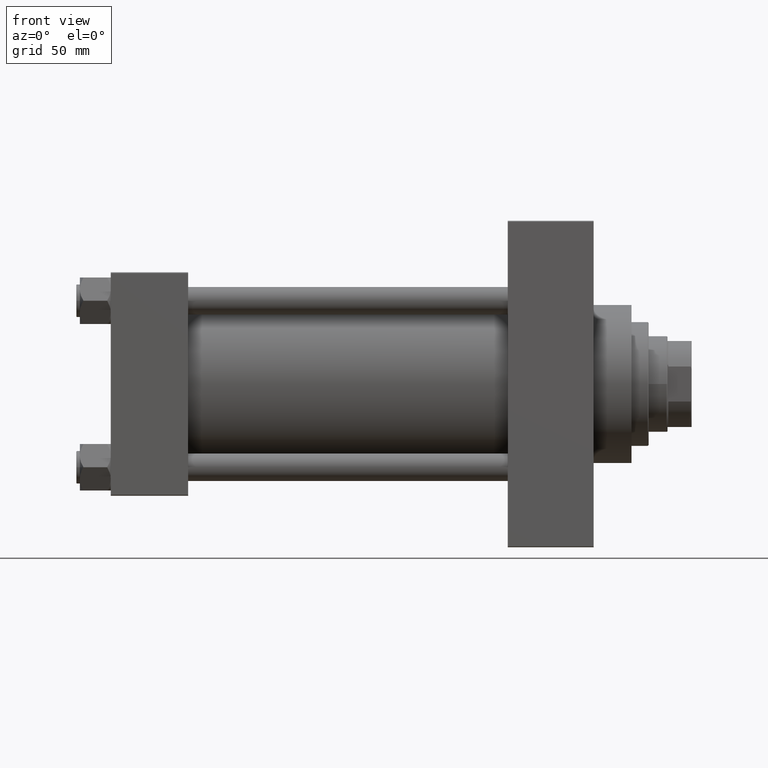
[diagram: clean part render]
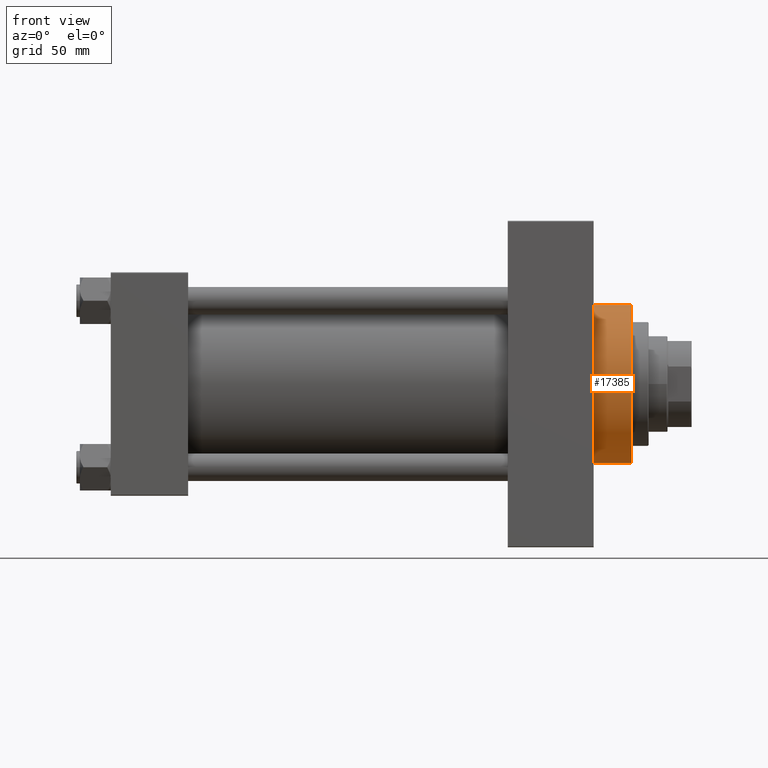
[diagram: same view with one face highlighted and labeled with its STEP entity id]
A machine part, front view. The second image highlights one B-rep face of the part: STEP entity #17385.
In plain terms, the highlighted cylindrical surface (partial cylindrical patch) has radius 46 mm, axis along (-1, -0, -0).
Its self-contained STEP definition (entity closure, byte-faithful):
#922 = AXIS2_PLACEMENT_3D ( 'NONE', #34945, #2339, #5239 ) ;
#1538 = ORIENTED_EDGE ( 'NONE', *, *, #9015, .F. ) ;
#2098 = FACE_OUTER_BOUND ( 'NONE', #14845, .T. ) ;
#2339 = DIRECTION ( 'NONE',  ( -1.000000000000000000, -0.000000000000000000, -0.000000000000000000 ) ) ;
#2580 = CYLINDRICAL_SURFACE ( 'NONE', #922, 46.00000000000000000 ) ;
#2700 = DIRECTION ( 'NONE',  ( -1.000000000000000000, -0.000000000000000000, -0.000000000000000000 ) ) ;
#2940 = DIRECTION ( 'NONE',  ( -1.000000000000000000, -0.000000000000000000, -0.000000000000000000 ) ) ;
#3550 = VERTEX_POINT ( 'NONE', #18384 ) ;
#5239 = DIRECTION ( 'NONE',  ( 0.000000000000000000, 0.000000000000000000, 1.000000000000000000 ) ) ;
#7026 = DIRECTION ( 'NONE',  ( 1.000000000000000000, 0.000000000000000000, 0.000000000000000000 ) ) ;
#7413 = CARTESIAN_POINT ( 'NONE',  ( 303.0000000000000000, 0.000000000000000000, 0.000000000000000000 ) ) ;
#7678 = AXIS2_PLACEMENT_3D ( 'NONE', #7413, #28683, #10106 ) ;
#9015 = EDGE_CURVE ( 'NONE', #43913, #39475, #33423, .T. ) ;
#10106 = DIRECTION ( 'NONE',  ( 0.000000000000000000, 0.000000000000000000, -1.000000000000000000 ) ) ;
#14124 = VECTOR ( 'NONE', #2940, 1000.000000000000000 ) ;
#14283 = CARTESIAN_POINT ( 'NONE',  ( 303.0000000000000000, 5.633375276077824704E-15, -46.00000000000000000 ) ) ;
#14845 = EDGE_LOOP ( 'NONE', ( #17768, #1538, #21841, #27807 ) ) ;
#16715 = LINE ( 'NONE', #28055, #44828 ) ;
#17141 = AXIS2_PLACEMENT_3D ( 'NONE', #24003, #7026, #40325 ) ;
#17385 = ADVANCED_FACE ( 'NONE', ( #2098 ), #2580, .T. ) ;
#17768 = ORIENTED_EDGE ( 'NONE', *, *, #20537, .F. ) ;
#18384 = CARTESIAN_POINT ( 'NONE',  ( 281.0000000000000000, 0.000000000000000000, 46.00000000000000000 ) ) ;
#20537 = EDGE_CURVE ( 'NONE', #39475, #39036, #31921, .T. ) ;
#21841 = ORIENTED_EDGE ( 'NONE', *, *, #45502, .T. ) ;
#24003 = CARTESIAN_POINT ( 'NONE',  ( 281.0000000000000000, 0.000000000000000000, 0.000000000000000000 ) ) ;
#27807 = ORIENTED_EDGE ( 'NONE', *, *, #44293, .T. ) ;
#28055 = CARTESIAN_POINT ( 'NONE',  ( 303.0000000000000000, 0.000000000000000000, 46.00000000000000000 ) ) ;
#28683 = DIRECTION ( 'NONE',  ( 1.000000000000000000, 0.000000000000000000, 0.000000000000000000 ) ) ;
#31021 = CIRCLE ( 'NONE', #17141, 46.00000000000000000 ) ;
#31921 = LINE ( 'NONE', #14283, #14124 ) ;
#33423 = CIRCLE ( 'NONE', #7678, 46.00000000000000000 ) ;
#34785 = CARTESIAN_POINT ( 'NONE',  ( 303.0000000000000000, 5.633375276077824704E-15, -46.00000000000000000 ) ) ;
#34945 = CARTESIAN_POINT ( 'NONE',  ( 303.0000000000000000, 0.000000000000000000, 0.000000000000000000 ) ) ;
#37752 = CARTESIAN_POINT ( 'NONE',  ( 281.0000000000000000, 5.633375276077824704E-15, -46.00000000000000000 ) ) ;
#38955 = CARTESIAN_POINT ( 'NONE',  ( 303.0000000000000000, 0.000000000000000000, 46.00000000000000000 ) ) ;
#39036 = VERTEX_POINT ( 'NONE', #37752 ) ;
#39475 = VERTEX_POINT ( 'NONE', #34785 ) ;
#40325 = DIRECTION ( 'NONE',  ( 0.000000000000000000, 0.000000000000000000, -1.000000000000000000 ) ) ;
#43913 = VERTEX_POINT ( 'NONE', #38955 ) ;
#44293 = EDGE_CURVE ( 'NONE', #3550, #39036, #31021, .T. ) ;
#44828 = VECTOR ( 'NONE', #2700, 1000.000000000000000 ) ;
#45502 = EDGE_CURVE ( 'NONE', #43913, #3550, #16715, .T. ) ;